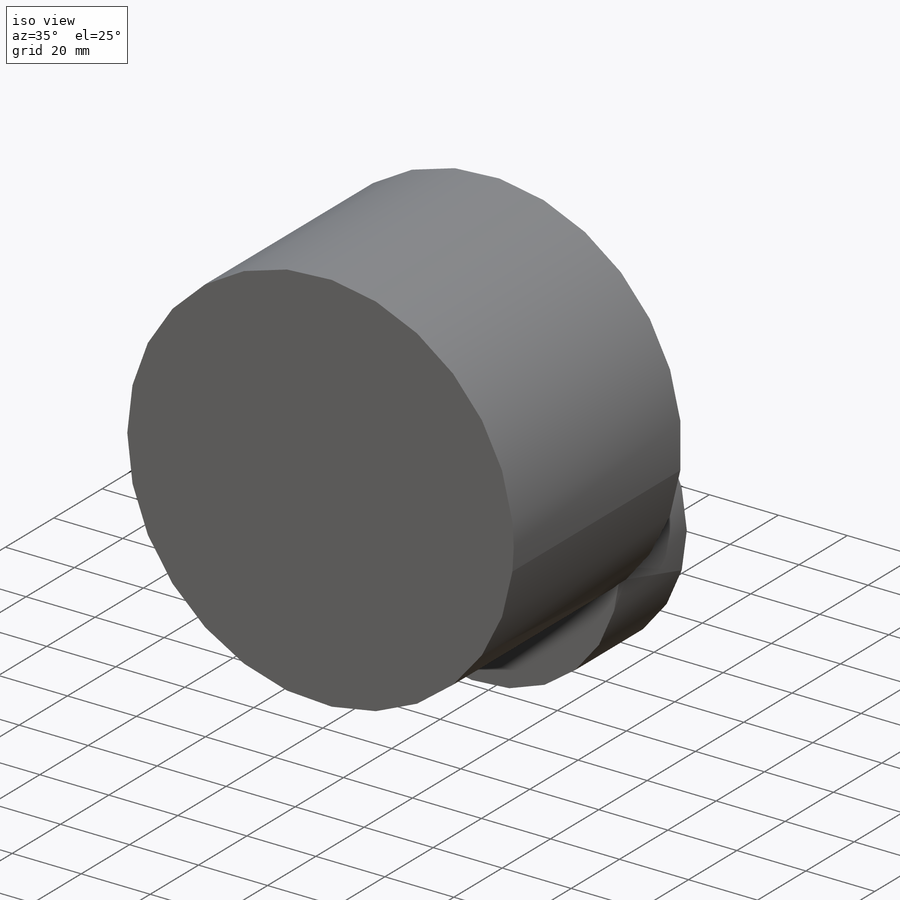
[diagram: iso view]
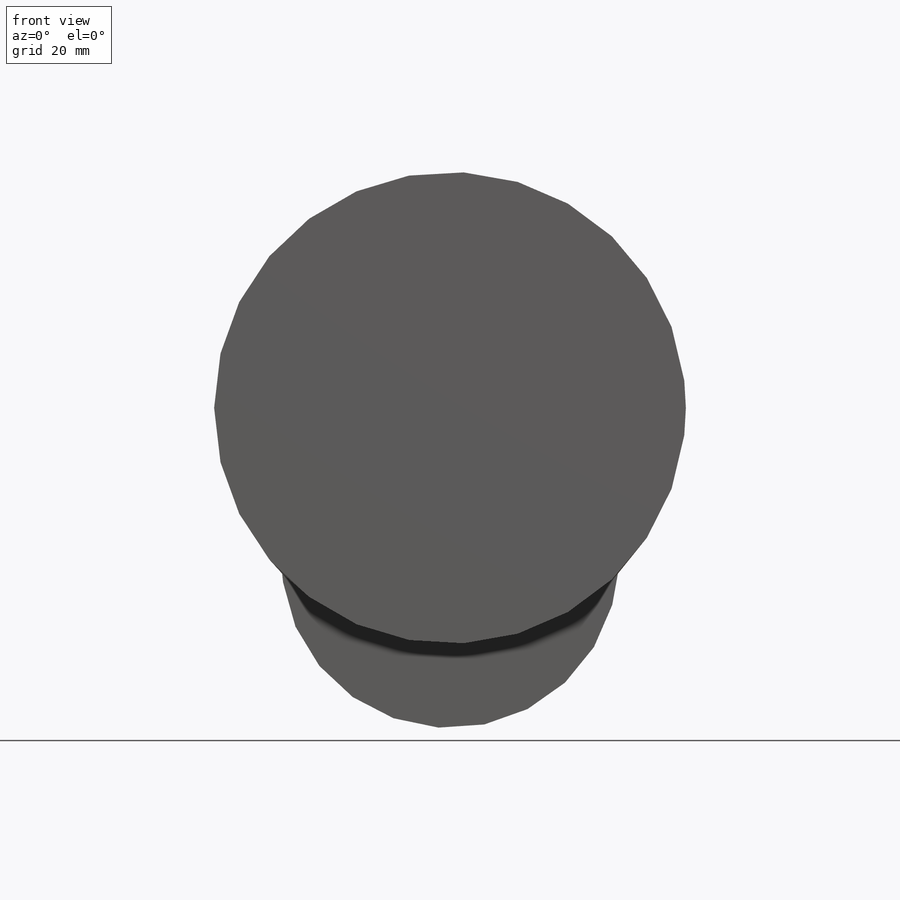
[diagram: front view]
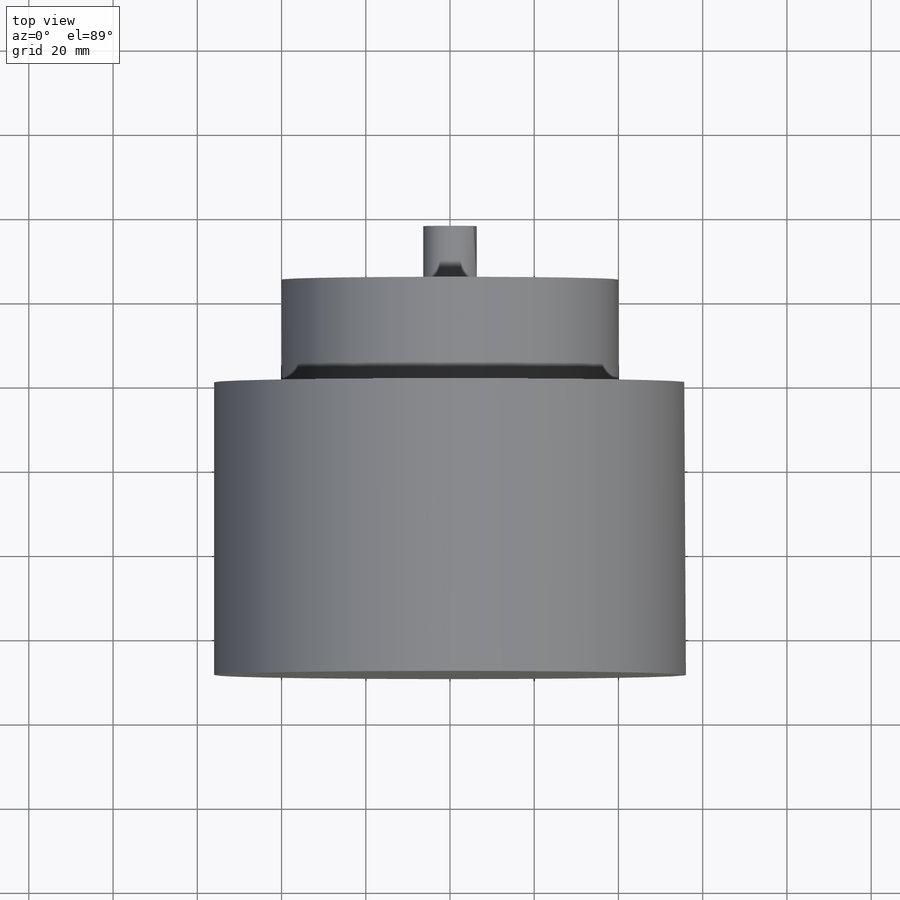
[diagram: top view]
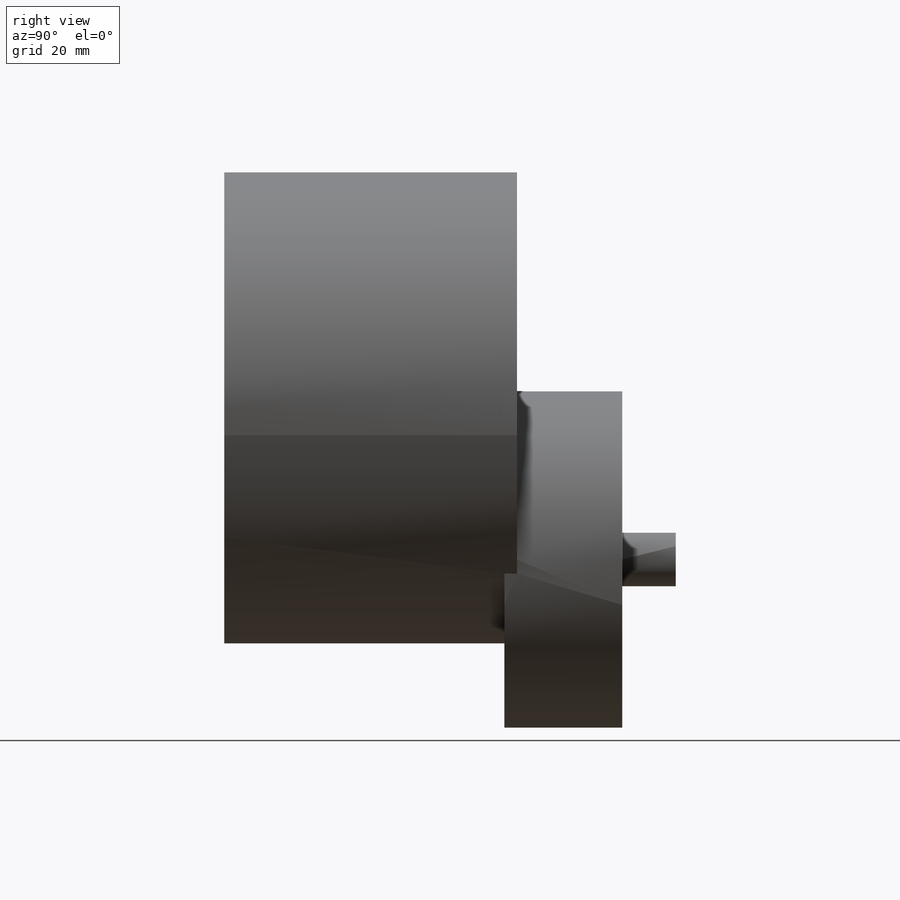
[diagram: right view]
SOLIDWORKS PART (.sldprt)
format: sldprt  version: not decoded by parser v0  size: 264,704 bytes
history: native  units: mm
features: sketch x4, extrude x3, plane x2, material x1, cut_extrude x1 (+13 scaffold rows collapsed)
feature tree (24):
  scaffold x13  (default folders/planes/origin — collapsed)
  material  "Material <not specified>"
  sketch  "Sketch1"  dims[D1=112.0mm]
  extrude  "Extrude1"  Depth=69.5mm
  sketch  "Sketch2"  dims[D1=80.0mm D2=36.0mm]
  extrude  "Extrude2"  Depth=25mm
  sketch  "Sketch3"  dims[D1=5.0mm D2=98.0mm]
  cut_extrude  "Cut-Extrude1"  Depth=10mm
  sketch  "Sketch4"  dims[D1=12.7mm]
  extrude  "Extrude3"  Depth=12.7mm
  plane  "cg_plane"  Offset=31.75mm
  plane  "Plane1"
decode coverage: 8 of 8 modeling features carry decoded parameters
note: suppression state not decoded; provenance and decode notes live in map.json
